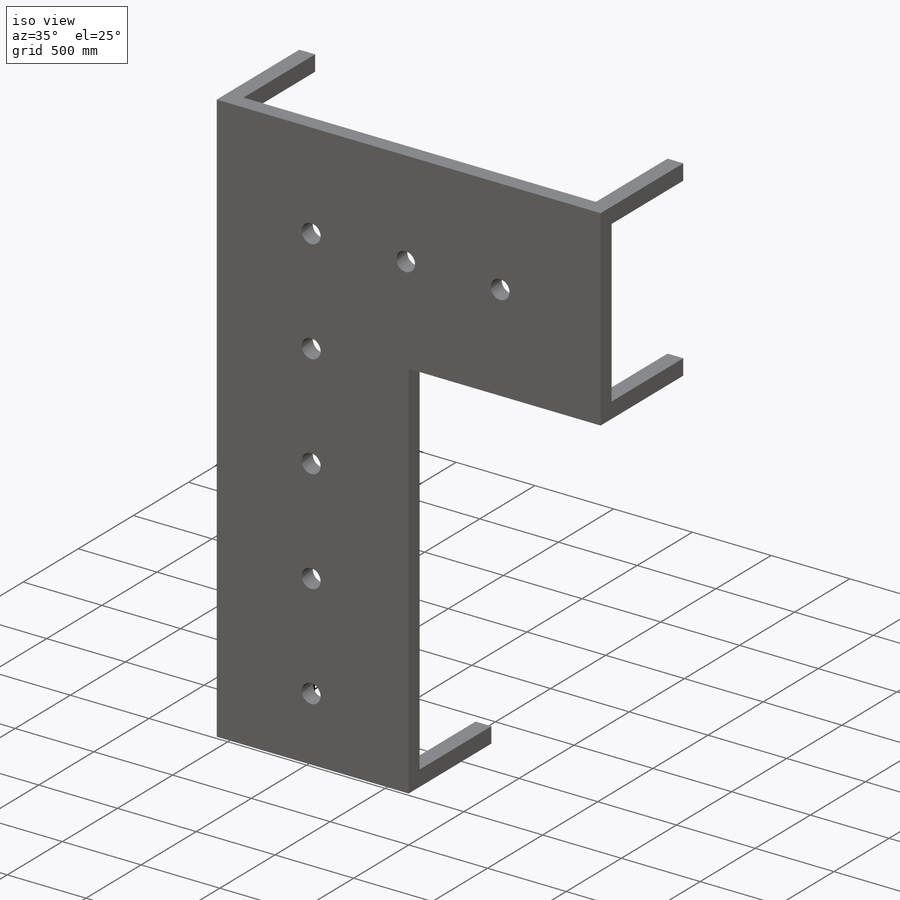
[diagram: iso view]
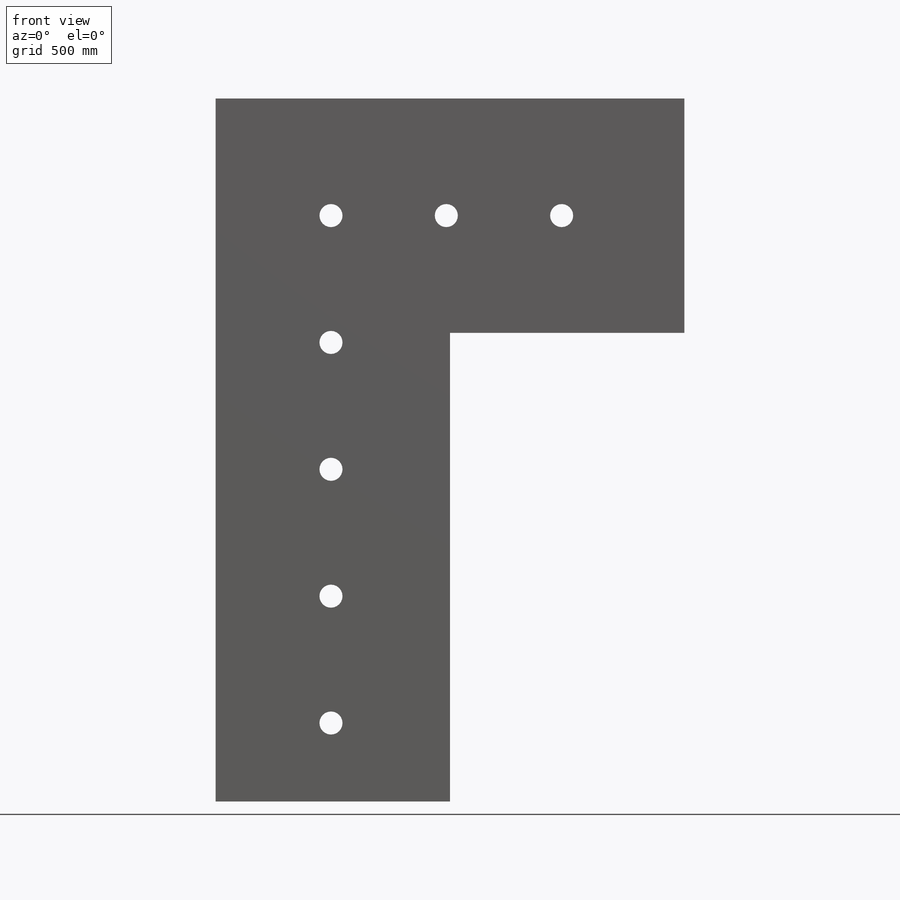
[diagram: front view]
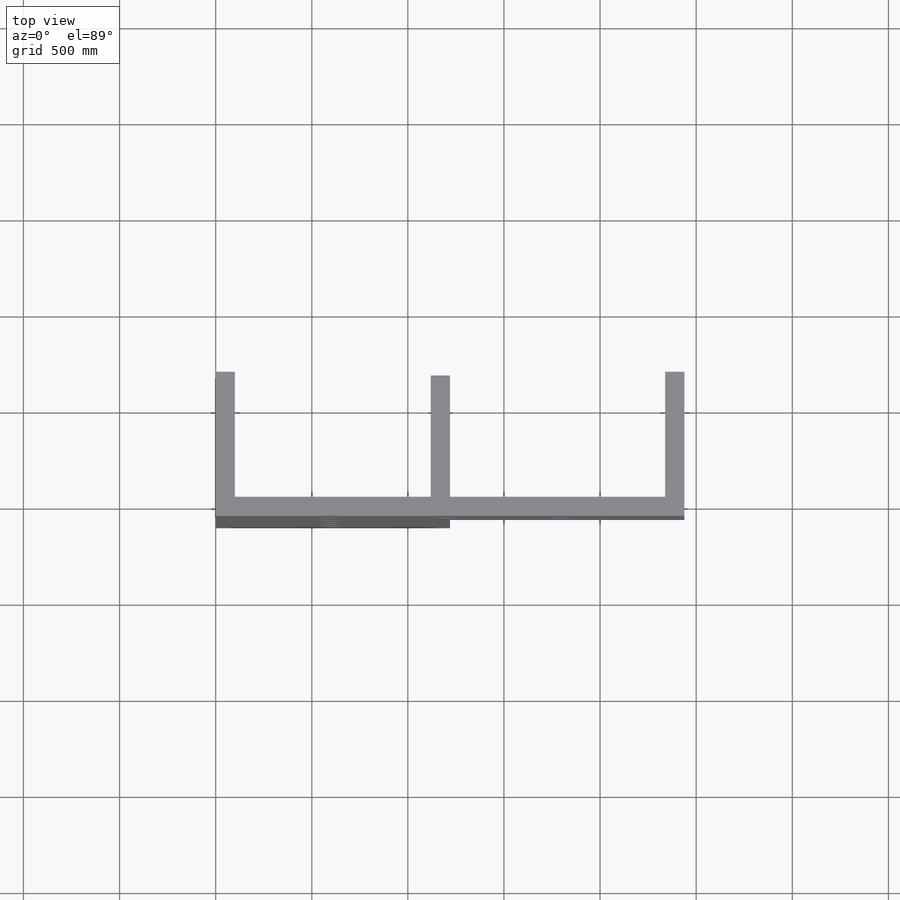
[diagram: top view]
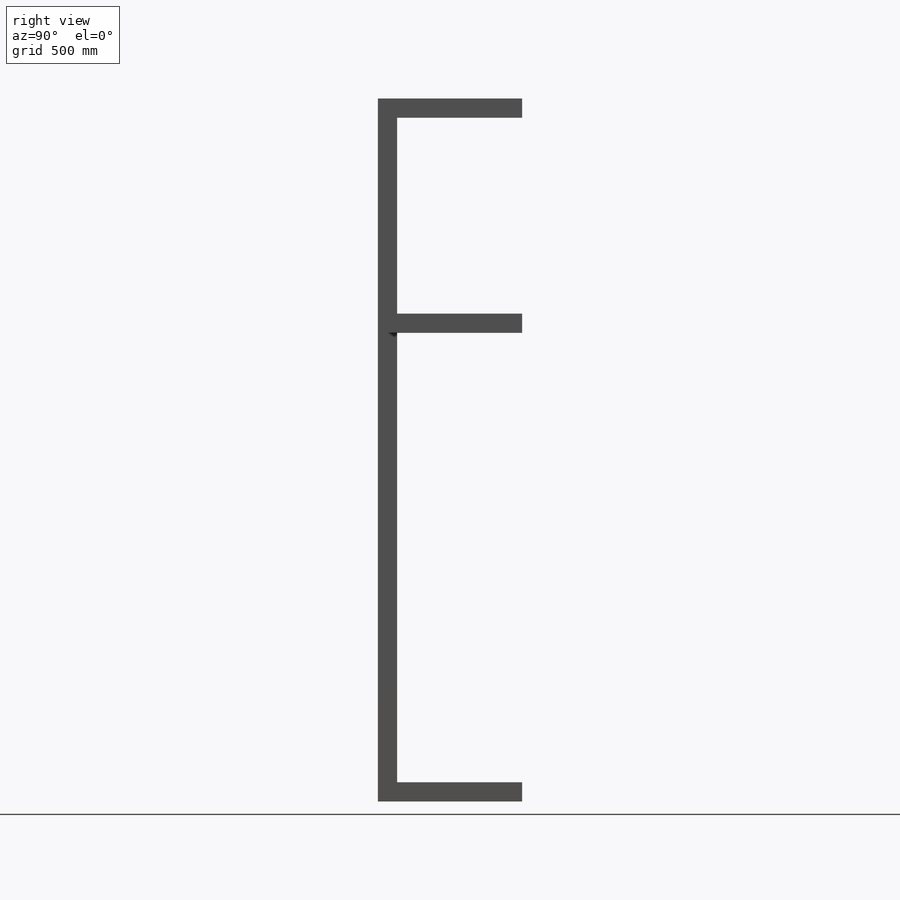
[diagram: right view]
SOLIDWORKS PART (.sldprt)
format: sldprt  version: not decoded by parser v0  size: 241,152 bytes
history: native  units: mm
features: sketch x3, extrude x2, material x1, cut_extrude x1 (+12 scaffold rows collapsed)
feature tree (19):
  scaffold x12  (default folders/planes/origin — collapsed)
  material  "Material <not specified>"
  sketch  "Sketch3"  dims[c1.D1=2438.0mm c1.D2=1219.2mm c1.D3=1219.0mm c1.D4=2428.0mm c2.D1=2438.4mm c2.D3=1219.2mm c2.D4=2438.4mm]
  extrude  "Boss-Extrude1"  Depth=100mm
  sketch  "Sketch4"  dims[c1.D1=~109.964768mm c1.D2=~116.762233mm c2.D1=100.0mm c2.D2=100.0mm c2.D3=100.0mm c2.D4=100.0mm c2.D5=100.0mm c2.D6=100.0mm c2.D7=100.0mm c2.D8=100.0mm c2.D9=100.0mm c2.D10=100.0mm c2.D11=100.0mm c2.D12=100.0mm c3.D1=100.0mm c3.D2=100.0mm c3.D7=100.0mm c3.D8=100.0mm c3.D9=100.0mm c4.D8=100.0mm c4.D9=100.0mm c4.D10=100.0mm c4.D11=100.0mm c4.D12=100.0mm c4.D13=100.0mm c4.D14=100.0mm]
  extrude  "Boss-Extrude2"  Depth=650mm
  sketch  "Sketch5"  dims[c1.D1=120.0mm c1.D4=120.0mm c1.D3=600.0mm c2.D4=600.0mm c2.D3=600.0mm c3.D4=600.0mm c3.D3=610.0mm c3.D5=1219.0mm c3.D1=5.0 c3.D2=4.0]
  cut_extrude  "Cut-Extrude2"  [1 undecoded]
decode coverage: 5 of 6 modeling features carry decoded parameters
note: ~ marks probable driven/reference dimensions
note: 1 parameter value undecoded
note: suppression state not decoded; provenance and decode notes live in map.json
